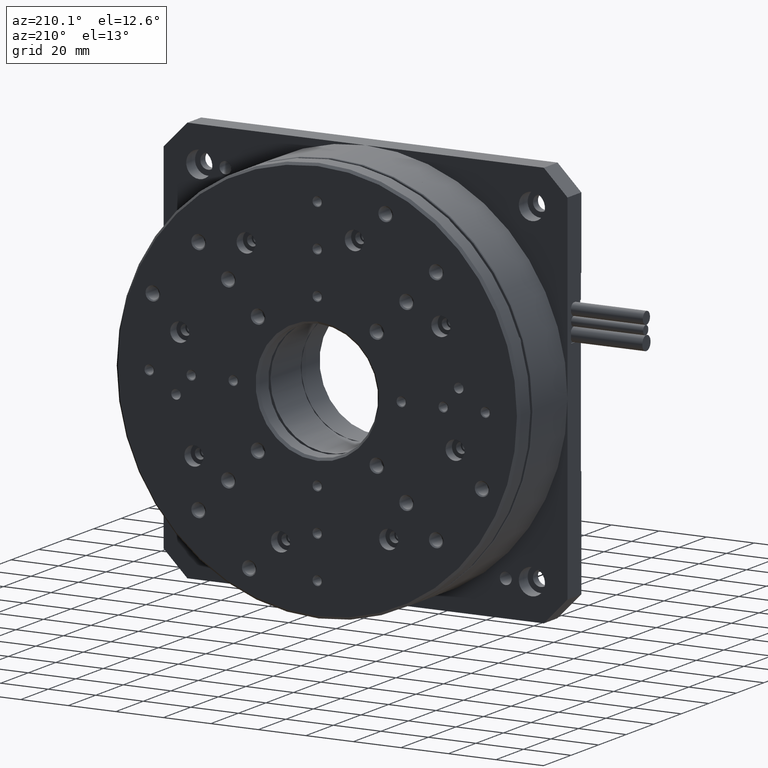
[diagram: clean part render]
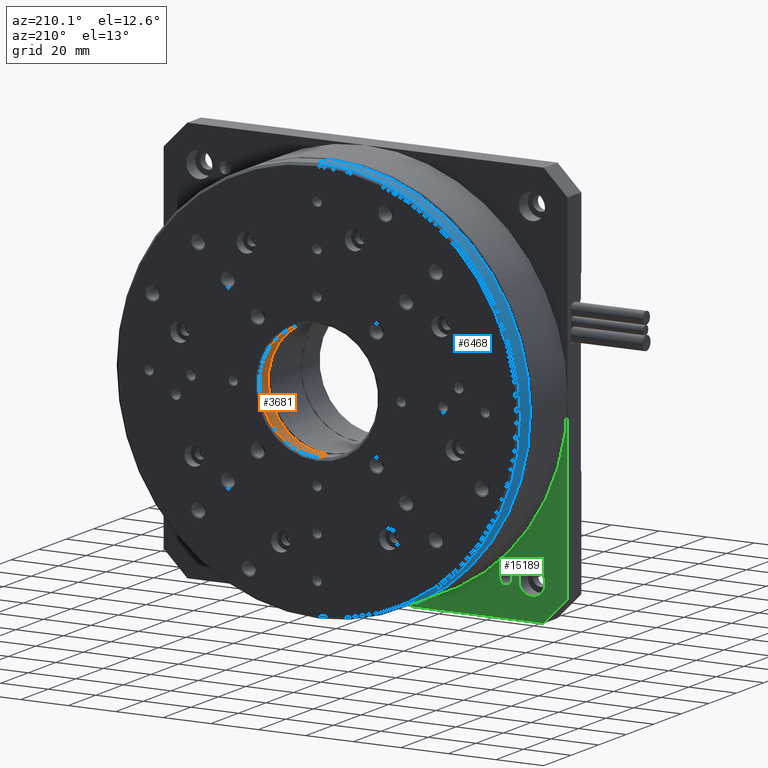
[diagram: same view with three faces highlighted in distinct colors, each labeled with its STEP entity id]
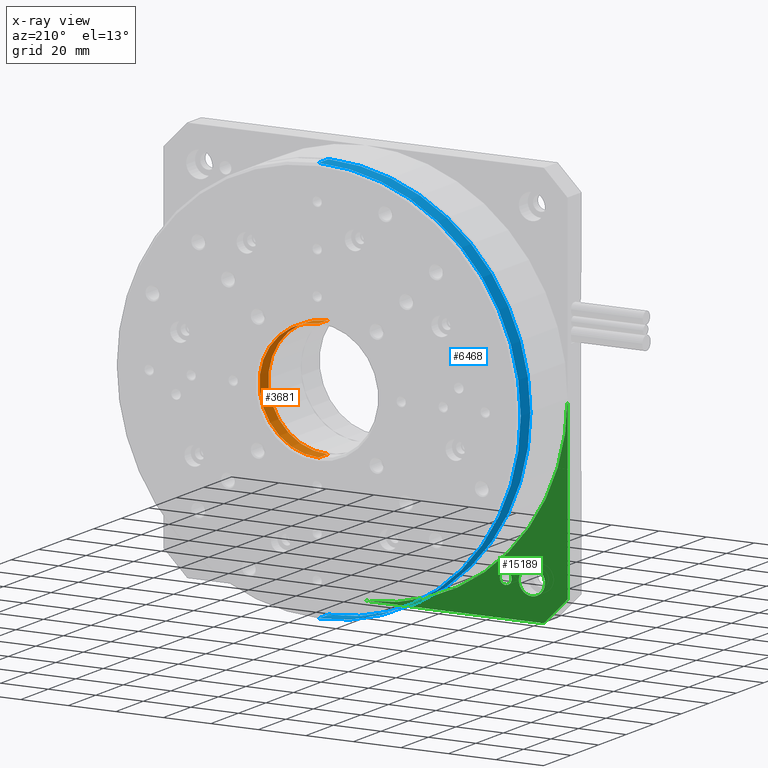
[diagram: x-ray of the same camera — body ghosted, the three highlighted faces saturated]
A machine part, auxiliary view with three faces highlighted in distinct colors.
The next image is the same camera in x-ray (body ghosted, the three faces saturated) — at least one of them is partly hidden behind the body in this view.
Their STEP definitions:

[orange] entity #3681 — the highlighted cylindrical surface (partial cylindrical patch) has radius 25 mm, axis along (-0, -1, -0).
#997 = CARTESIAN_POINT ( 'NONE',  ( 85.00000000000001400, 44.00000000000006400, 85.00000000000014200 ) ) ;
#1673 = CARTESIAN_POINT ( 'NONE',  ( 85.00000000000001400, 45.00000000000000700, 85.00000000000014200 ) ) ;
#3681 = ADVANCED_FACE ( 'NONE', ( #19323 ), #13413, .F. ) ;
#4280 = DIRECTION ( 'NONE',  ( -0.0000000000000000000, -1.000000000000000000, -0.0000000000000000000 ) ) ;
#4313 = VERTEX_POINT ( 'NONE', #4780 ) ;
#4780 = CARTESIAN_POINT ( 'NONE',  ( 85.00000000000001400, 37.50000000000000700, 110.0000000000001600 ) ) ;
#6962 = CARTESIAN_POINT ( 'NONE',  ( 85.00000000000001400, 37.50000000000000700, 85.00000000000014200 ) ) ;
#7581 = EDGE_CURVE ( 'NONE', #9792, #8641, #21393, .T. ) ;
#8030 = ORIENTED_EDGE ( 'NONE', *, *, #9825, .T. ) ;
#8641 = VERTEX_POINT ( 'NONE', #16354 ) ;
#9651 = ORIENTED_EDGE ( 'NONE', *, *, #12879, .F. ) ;
#9792 = VERTEX_POINT ( 'NONE', #23113 ) ;
#9825 = EDGE_CURVE ( 'NONE', #8641, #4313, #18144, .T. ) ;
#10322 = DIRECTION ( 'NONE',  ( -0.0000000000000000000, -1.000000000000000000, -0.0000000000000000000 ) ) ;
#10358 = AXIS2_PLACEMENT_3D ( 'NONE', #997, #15321, #15239 ) ;
#10717 = DIRECTION ( 'NONE',  ( -0.0000000000000000000, -1.000000000000000000, -0.0000000000000000000 ) ) ;
#11027 = CARTESIAN_POINT ( 'NONE',  ( 85.00000000000001400, 45.00000000000000700, 60.00000000000014200 ) ) ;
#11426 = CARTESIAN_POINT ( 'NONE',  ( 85.00000000000001400, 45.00000000000000700, 110.0000000000001600 ) ) ;
#12202 = CIRCLE ( 'NONE', #10358, 25.00000000000000700 ) ;
#12217 = ORIENTED_EDGE ( 'NONE', *, *, #7581, .T. ) ;
#12879 = EDGE_CURVE ( 'NONE', #14132, #4313, #21908, .T. ) ;
#13000 = CARTESIAN_POINT ( 'NONE',  ( 85.00000000000001400, 44.00000000000006400, 110.0000000000001600 ) ) ;
#13413 = CYLINDRICAL_SURFACE ( 'NONE', #16277, 25.00000000000000000 ) ;
#13533 = VECTOR ( 'NONE', #10717, 1000.000000000000000 ) ;
#14132 = VERTEX_POINT ( 'NONE', #13000 ) ;
#14930 = ORIENTED_EDGE ( 'NONE', *, *, #19761, .T. ) ;
#15239 = DIRECTION ( 'NONE',  ( 0.0000000000000000000, 0.0000000000000000000, 1.000000000000000000 ) ) ;
#15321 = DIRECTION ( 'NONE',  ( 0.0000000000000000000, 1.000000000000000000, 0.0000000000000000000 ) ) ;
#16277 = AXIS2_PLACEMENT_3D ( 'NONE', #1673, #10322, #22990 ) ;
#16354 = CARTESIAN_POINT ( 'NONE',  ( 85.00000000000001400, 37.50000000000000700, 60.00000000000014200 ) ) ;
#17766 = DIRECTION ( 'NONE',  ( 0.0000000000000000000, -1.000000000000000000, 0.0000000000000000000 ) ) ;
#18144 = CIRCLE ( 'NONE', #19330, 25.00000000000000000 ) ;
#18662 = EDGE_LOOP ( 'NONE', ( #9651, #14930, #12217, #8030 ) ) ;
#19323 = FACE_OUTER_BOUND ( 'NONE', #18662, .T. ) ;
#19330 = AXIS2_PLACEMENT_3D ( 'NONE', #6962, #17766, #21385 ) ;
#19761 = EDGE_CURVE ( 'NONE', #14132, #9792, #12202, .T. ) ;
#21385 = DIRECTION ( 'NONE',  ( 0.0000000000000000000, 0.0000000000000000000, -1.000000000000000000 ) ) ;
#21393 = LINE ( 'NONE', #11027, #13533 ) ;
#21908 = LINE ( 'NONE', #11426, #22776 ) ;
#22776 = VECTOR ( 'NONE', #4280, 1000.000000000000000 ) ;
#22990 = DIRECTION ( 'NONE',  ( 0.0000000000000000000, 0.0000000000000000000, -1.000000000000000000 ) ) ;
#23113 = CARTESIAN_POINT ( 'NONE',  ( 85.00000000000001400, 44.00000000000006400, 60.00000000000014200 ) ) ;

[blue] entity #6468 — the highlighted cylindrical surface (partial cylindrical patch) has radius 85 mm, axis along (-0, -1, -0).
#725 = VERTEX_POINT ( 'NONE', #14693 ) ;
#805 = CYLINDRICAL_SURFACE ( 'NONE', #18151, 85.00000000000001400 ) ;
#1665 = ORIENTED_EDGE ( 'NONE', *, *, #20850, .F. ) ;
#1828 = VERTEX_POINT ( 'NONE', #2746 ) ;
#1910 = CARTESIAN_POINT ( 'NONE',  ( 85.00000000000001400, 45.00000000000000700, 1.249000902703301100E-013 ) ) ;
#2218 = VERTEX_POINT ( 'NONE', #3984 ) ;
#2746 = CARTESIAN_POINT ( 'NONE',  ( 85.00000000000002800, 44.00000000000002100, 170.0000000000001400 ) ) ;
#3728 = DIRECTION ( 'NONE',  ( -0.0000000000000000000, -1.000000000000000000, -0.0000000000000000000 ) ) ;
#3984 = CARTESIAN_POINT ( 'NONE',  ( 85.00000000000001400, 37.00000000000000700, 1.249000902703301100E-013 ) ) ;
#4316 = CARTESIAN_POINT ( 'NONE',  ( 85.00000000000001400, 37.00000000000000700, 85.00000000000014200 ) ) ;
#4703 = FACE_OUTER_BOUND ( 'NONE', #20474, .T. ) ;
#5106 = DIRECTION ( 'NONE',  ( 0.0000000000000000000, 0.0000000000000000000, -1.000000000000000000 ) ) ;
#6468 = ADVANCED_FACE ( 'NONE', ( #4703 ), #805, .T. ) ;
#6983 = CARTESIAN_POINT ( 'NONE',  ( 85.00000000000001400, 45.00000000000000700, 85.00000000000014200 ) ) ;
#7568 = AXIS2_PLACEMENT_3D ( 'NONE', #13127, #18701, #20271 ) ;
#8519 = LINE ( 'NONE', #14099, #18580 ) ;
#9919 = LINE ( 'NONE', #1910, #20827 ) ;
#12564 = CARTESIAN_POINT ( 'NONE',  ( 85.00000000000001400, 44.00000000000002100, 1.249000902703301100E-013 ) ) ;
#13127 = CARTESIAN_POINT ( 'NONE',  ( 85.00000000000001400, 44.00000000000002100, 85.00000000000014200 ) ) ;
#14099 = CARTESIAN_POINT ( 'NONE',  ( 85.00000000000002800, 45.00000000000000700, 170.0000000000001400 ) ) ;
#14693 = CARTESIAN_POINT ( 'NONE',  ( 85.00000000000002800, 37.00000000000000700, 170.0000000000001400 ) ) ;
#16362 = ORIENTED_EDGE ( 'NONE', *, *, #21647, .T. ) ;
#16898 = EDGE_CURVE ( 'NONE', #1828, #22514, #21549, .T. ) ;
#16998 = DIRECTION ( 'NONE',  ( 0.0000000000000000000, 1.000000000000000000, 0.0000000000000000000 ) ) ;
#17184 = ORIENTED_EDGE ( 'NONE', *, *, #19061, .T. ) ;
#18151 = AXIS2_PLACEMENT_3D ( 'NONE', #6983, #23128, #5106 ) ;
#18476 = CIRCLE ( 'NONE', #19403, 85.00000000000000000 ) ;
#18580 = VECTOR ( 'NONE', #19425, 1000.000000000000000 ) ;
#18701 = DIRECTION ( 'NONE',  ( 0.0000000000000000000, -1.000000000000000000, 0.0000000000000000000 ) ) ;
#19061 = EDGE_CURVE ( 'NONE', #22514, #2218, #9919, .T. ) ;
#19403 = AXIS2_PLACEMENT_3D ( 'NONE', #4316, #16998, #22493 ) ;
#19425 = DIRECTION ( 'NONE',  ( -0.0000000000000000000, -1.000000000000000000, -0.0000000000000000000 ) ) ;
#20271 = DIRECTION ( 'NONE',  ( 0.0000000000000000000, 0.0000000000000000000, 1.000000000000000000 ) ) ;
#20474 = EDGE_LOOP ( 'NONE', ( #1665, #20673, #17184, #16362 ) ) ;
#20673 = ORIENTED_EDGE ( 'NONE', *, *, #16898, .T. ) ;
#20827 = VECTOR ( 'NONE', #3728, 1000.000000000000000 ) ;
#20850 = EDGE_CURVE ( 'NONE', #1828, #725, #8519, .T. ) ;
#21549 = CIRCLE ( 'NONE', #7568, 85.00000000000000000 ) ;
#21647 = EDGE_CURVE ( 'NONE', #2218, #725, #18476, .T. ) ;
#22493 = DIRECTION ( 'NONE',  ( 0.0000000000000000000, 0.0000000000000000000, 1.000000000000000000 ) ) ;
#22514 = VERTEX_POINT ( 'NONE', #12564 ) ;
#23128 = DIRECTION ( 'NONE',  ( -0.0000000000000000000, -1.000000000000000000, -0.0000000000000000000 ) ) ;

[green] entity #15189 — the highlighted planar face has unit normal (0, -1, 0).
#178 = DIRECTION ( 'NONE',  ( -0.0000000000000000000, 1.000000000000000000, -0.0000000000000000000 ) ) ;
#276 = EDGE_CURVE ( 'NONE', #19264, #9880, #22457, .T. ) ;
#323 = CARTESIAN_POINT ( 'NONE',  ( -2.312964634635752500E-015, 10.00000000000000000, 10.00000000000009200 ) ) ;
#345 = DIRECTION ( 'NONE',  ( -0.0000000000000000000, -0.0000000000000000000, 1.000000000000000000 ) ) ;
#516 = CARTESIAN_POINT ( 'NONE',  ( -1.387778780781445700E-014, 9.999999999999998200, 85.00000000000001400 ) ) ;
#879 = VERTEX_POINT ( 'NONE', #20501 ) ;
#1835 = DIRECTION ( 'NONE',  ( -0.0000000000000000000, 1.000000000000000000, -0.0000000000000000000 ) ) ;
#2245 = EDGE_LOOP ( 'NONE', ( #18967, #4869 ) ) ;
#2425 = CIRCLE ( 'NONE', #20094, 5.500000000000005300 ) ;
#2666 = AXIS2_PLACEMENT_3D ( 'NONE', #9540, #22038, #11326 ) ;
#2802 = DIRECTION ( 'NONE',  ( 0.7071067811865462400, 0.0000000000000000000, -0.7071067811865489100 ) ) ;
#2929 = ORIENTED_EDGE ( 'NONE', *, *, #4145, .F. ) ;
#3435 = VERTEX_POINT ( 'NONE', #6149 ) ;
#4144 = EDGE_CURVE ( 'NONE', #22985, #7587, #8079, .T. ) ;
#4145 = EDGE_CURVE ( 'NONE', #879, #7587, #6132, .T. ) ;
#4868 = VERTEX_POINT ( 'NONE', #5143 ) ;
#4869 = ORIENTED_EDGE ( 'NONE', *, *, #10095, .F. ) ;
#5143 = CARTESIAN_POINT ( 'NONE',  ( 14.99999999999998600, 10.00000000000000000, 20.49999999999998900 ) ) ;
#5524 = EDGE_CURVE ( 'NONE', #3435, #879, #11299, .T. ) ;
#5544 = CARTESIAN_POINT ( 'NONE',  ( 25.99999999999998200, 10.00000000000000200, 12.49999999999998400 ) ) ;
#5953 = CARTESIAN_POINT ( 'NONE',  ( 0.0000000000000000000, 10.00000000000000000, 170.0000000000000000 ) ) ;
#6132 = CIRCLE ( 'NONE', #17197, 85.00000000000002800 ) ;
#6149 = CARTESIAN_POINT ( 'NONE',  ( 10.00000000000003900, 10.00000000000000000, 0.0000000000000000000 ) ) ;
#6238 = ORIENTED_EDGE ( 'NONE', *, *, #12093, .F. ) ;
#6376 = DIRECTION ( 'NONE',  ( 0.0000000000000000000, -0.0000000000000000000, -1.000000000000000000 ) ) ;
#6606 = CARTESIAN_POINT ( 'NONE',  ( 25.99999999999998200, 10.00000000000000200, 17.49999999999998900 ) ) ;
#6707 = AXIS2_PLACEMENT_3D ( 'NONE', #20063, #178, #7531 ) ;
#7089 = ORIENTED_EDGE ( 'NONE', *, *, #19892, .F. ) ;
#7174 = DIRECTION ( 'NONE',  ( 0.0000000000000000000, 0.0000000000000000000, 1.000000000000000000 ) ) ;
#7531 = DIRECTION ( 'NONE',  ( 0.0000000000000000000, 0.0000000000000000000, 1.000000000000000000 ) ) ;
#7587 = VERTEX_POINT ( 'NONE', #516 ) ;
#7822 = CIRCLE ( 'NONE', #6707, 5.500000000000005300 ) ;
#7933 = FACE_BOUND ( 'NONE', #10748, .T. ) ;
#8079 = LINE ( 'NONE', #5953, #16468 ) ;
#8732 = ORIENTED_EDGE ( 'NONE', *, *, #4144, .T. ) ;
#9180 = CIRCLE ( 'NONE', #18746, 2.500000000000002200 ) ;
#9218 = ORIENTED_EDGE ( 'NONE', *, *, #276, .F. ) ;
#9540 = CARTESIAN_POINT ( 'NONE',  ( 25.99999999999998200, 10.00000000000000200, 14.99999999999998600 ) ) ;
#9880 = VERTEX_POINT ( 'NONE', #5544 ) ;
#9892 = FACE_OUTER_BOUND ( 'NONE', #20734, .T. ) ;
#10095 = EDGE_CURVE ( 'NONE', #15766, #4868, #2425, .T. ) ;
#10748 = EDGE_LOOP ( 'NONE', ( #9218, #7089 ) ) ;
#11299 = LINE ( 'NONE', #20007, #12962 ) ;
#11326 = DIRECTION ( 'NONE',  ( 0.0000000000000000000, 0.0000000000000000000, 1.000000000000000000 ) ) ;
#12093 = EDGE_CURVE ( 'NONE', #22985, #3435, #21469, .T. ) ;
#12172 = PLANE ( 'NONE',  #13484 ) ;
#12962 = VECTOR ( 'NONE', #20238, 1000.000000000000000 ) ;
#13484 = AXIS2_PLACEMENT_3D ( 'NONE', #13569, #20795, #6376 ) ;
#13509 = CARTESIAN_POINT ( 'NONE',  ( -1.387778780781446000E-014, 10.00000000000000000, 10.00000000000009200 ) ) ;
#13569 = CARTESIAN_POINT ( 'NONE',  ( 0.0000000000000000000, 10.00000000000000000, 0.0000000000000000000 ) ) ;
#14888 = DIRECTION ( 'NONE',  ( 0.0000000000000000000, 0.0000000000000000000, -1.000000000000000000 ) ) ;
#15015 = CARTESIAN_POINT ( 'NONE',  ( 14.99999999999998600, 10.00000000000000000, 14.99999999999998600 ) ) ;
#15097 = DIRECTION ( 'NONE',  ( -0.0000000000000000000, 1.000000000000000000, -0.0000000000000000000 ) ) ;
#15189 = ADVANCED_FACE ( 'NONE', ( #9892, #19973, #7933 ), #12172, .F. ) ;
#15766 = VERTEX_POINT ( 'NONE', #17819 ) ;
#16468 = VECTOR ( 'NONE', #345, 1000.000000000000000 ) ;
#17197 = AXIS2_PLACEMENT_3D ( 'NONE', #22028, #21948, #14888 ) ;
#17819 = CARTESIAN_POINT ( 'NONE',  ( 14.99999999999998600, 10.00000000000000000, 9.499999999999980500 ) ) ;
#18077 = VECTOR ( 'NONE', #2802, 1000.000000000000000 ) ;
#18746 = AXIS2_PLACEMENT_3D ( 'NONE', #19558, #1835, #7174 ) ;
#18967 = ORIENTED_EDGE ( 'NONE', *, *, #23080, .F. ) ;
#19264 = VERTEX_POINT ( 'NONE', #6606 ) ;
#19558 = CARTESIAN_POINT ( 'NONE',  ( 25.99999999999998200, 10.00000000000000200, 14.99999999999998600 ) ) ;
#19892 = EDGE_CURVE ( 'NONE', #9880, #19264, #9180, .T. ) ;
#19947 = ORIENTED_EDGE ( 'NONE', *, *, #5524, .F. ) ;
#19973 = FACE_BOUND ( 'NONE', #2245, .T. ) ;
#20007 = CARTESIAN_POINT ( 'NONE',  ( 0.0000000000000000000, 10.00000000000000000, 0.0000000000000000000 ) ) ;
#20063 = CARTESIAN_POINT ( 'NONE',  ( 14.99999999999998600, 10.00000000000000000, 14.99999999999998600 ) ) ;
#20094 = AXIS2_PLACEMENT_3D ( 'NONE', #15015, #15097, #22233 ) ;
#20238 = DIRECTION ( 'NONE',  ( 1.000000000000000000, 0.0000000000000000000, 0.0000000000000000000 ) ) ;
#20501 = CARTESIAN_POINT ( 'NONE',  ( 85.00000000000000000, 9.999999999999998200, -2.775557561562891400E-014 ) ) ;
#20734 = EDGE_LOOP ( 'NONE', ( #6238, #8732, #2929, #19947 ) ) ;
#20795 = DIRECTION ( 'NONE',  ( 0.0000000000000000000, -1.000000000000000000, 0.0000000000000000000 ) ) ;
#21469 = LINE ( 'NONE', #13509, #18077 ) ;
#21948 = DIRECTION ( 'NONE',  ( 0.0000000000000000000, 1.000000000000000000, 0.0000000000000000000 ) ) ;
#22028 = CARTESIAN_POINT ( 'NONE',  ( 85.00000000000000000, 9.999999999999998200, 85.00000000000000000 ) ) ;
#22038 = DIRECTION ( 'NONE',  ( -0.0000000000000000000, 1.000000000000000000, -0.0000000000000000000 ) ) ;
#22233 = DIRECTION ( 'NONE',  ( 0.0000000000000000000, 0.0000000000000000000, 1.000000000000000000 ) ) ;
#22457 = CIRCLE ( 'NONE', #2666, 2.500000000000002200 ) ;
#22985 = VERTEX_POINT ( 'NONE', #323 ) ;
#23080 = EDGE_CURVE ( 'NONE', #4868, #15766, #7822, .T. ) ;